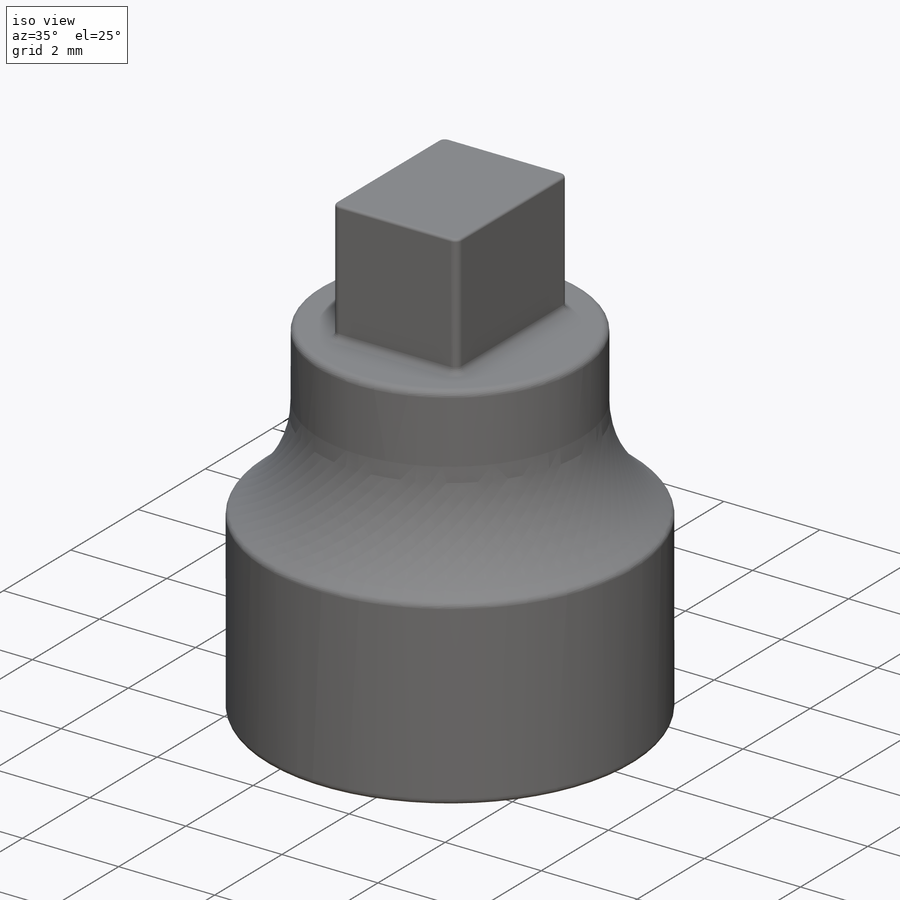
[diagram: iso view]
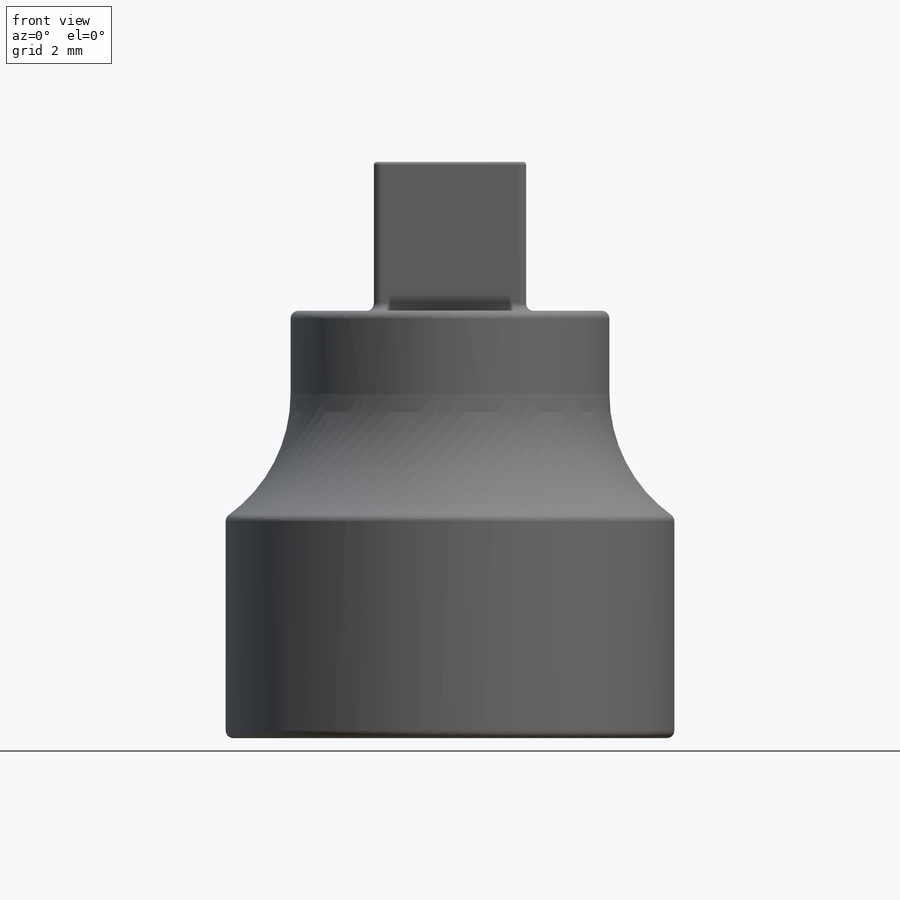
[diagram: front view]
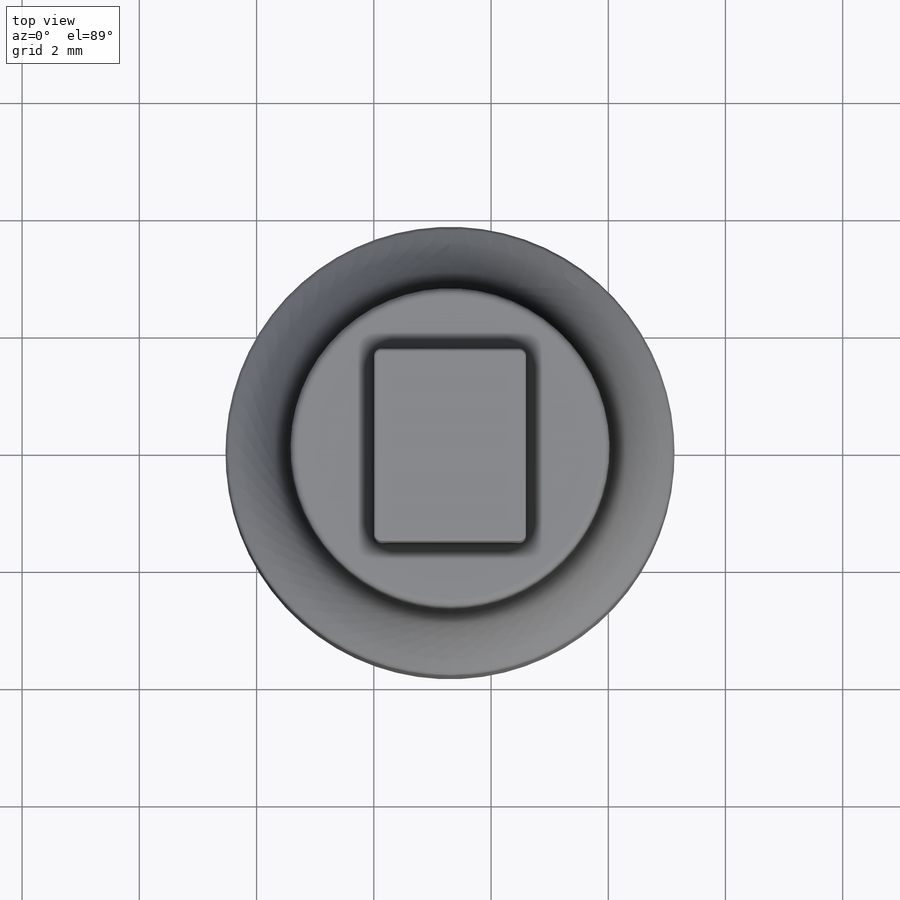
[diagram: top view]
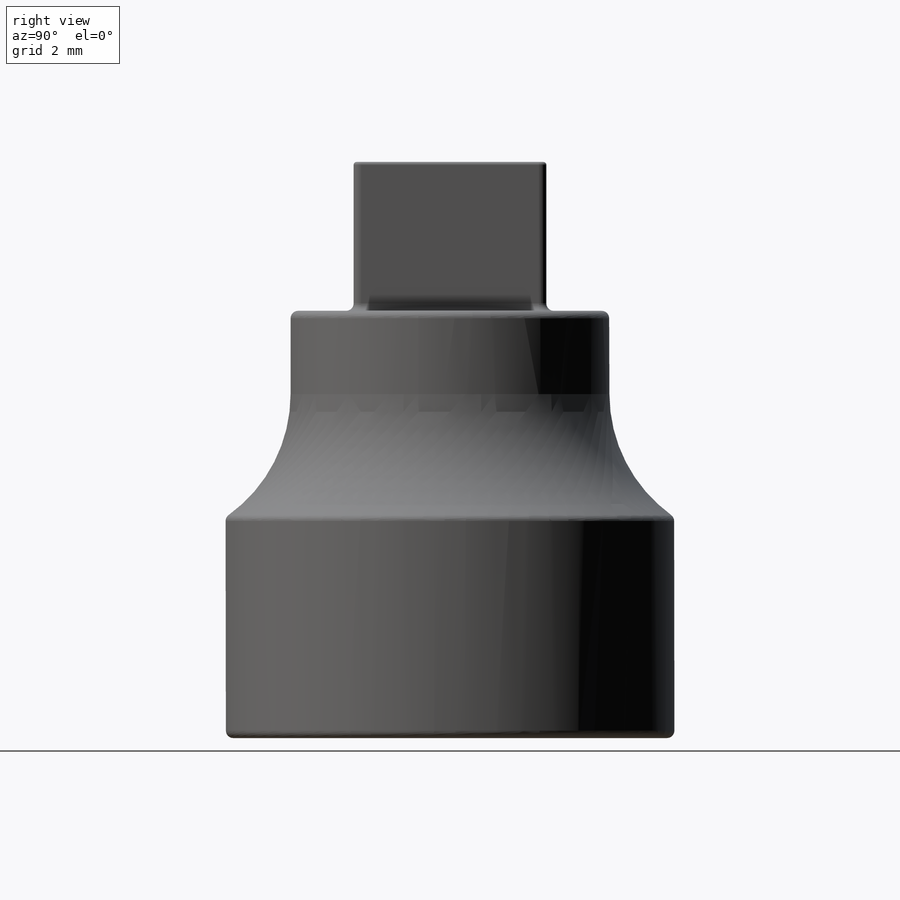
[diagram: right view]
SOLIDWORKS PART (.sldprt)
format: sldprt  version: not decoded by parser v0  size: 350,720 bytes
history: native  units: mm
features: fillet x6, sketch x2, material x1, revolve x1, extrude x1 (+11 scaffold rows collapsed)
feature tree (22):
  scaffold x11  (default folders/planes/origin — collapsed)
  material  "Material <not specified>"
  sketch  "Sketch1"
  revolve  "Revolve1"  Angle=360deg
  fillet  "Fillet1"  Radius=2.54mm
  fillet  "Fillet2"  Radius=0.127mm
  fillet  "Fillet3"  Radius=0.127mm
  sketch  "Sketch2"
  extrude  "Boss-Extrude1"  Depth=2.54mm
  fillet  "Fillet4"  Radius=0.127mm
  fillet  "Fillet5"  Radius=0.127mm
  fillet  "Fillet6"  Radius=0.0508mm
decode coverage: 8 of 10 modeling features carry decoded parameters
note: suppression state not decoded; provenance and decode notes live in map.json
